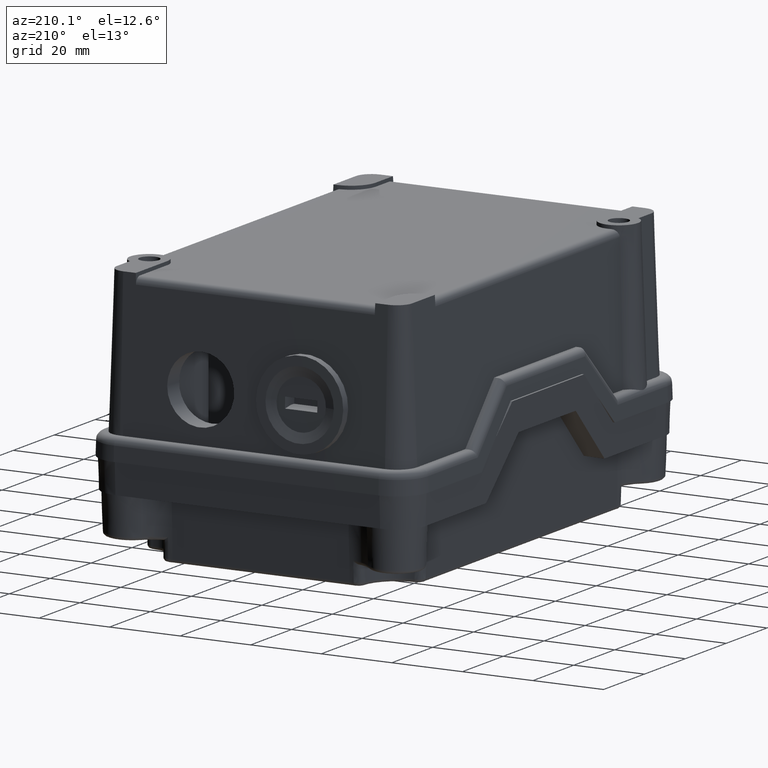
[diagram: clean part render]
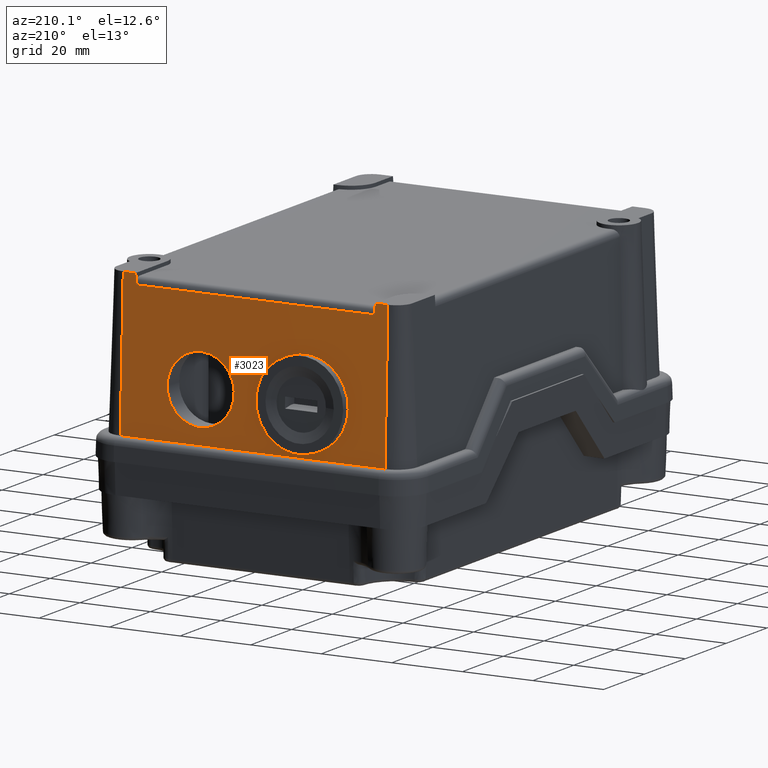
[diagram: same view with one face highlighted and labeled with its STEP entity id]
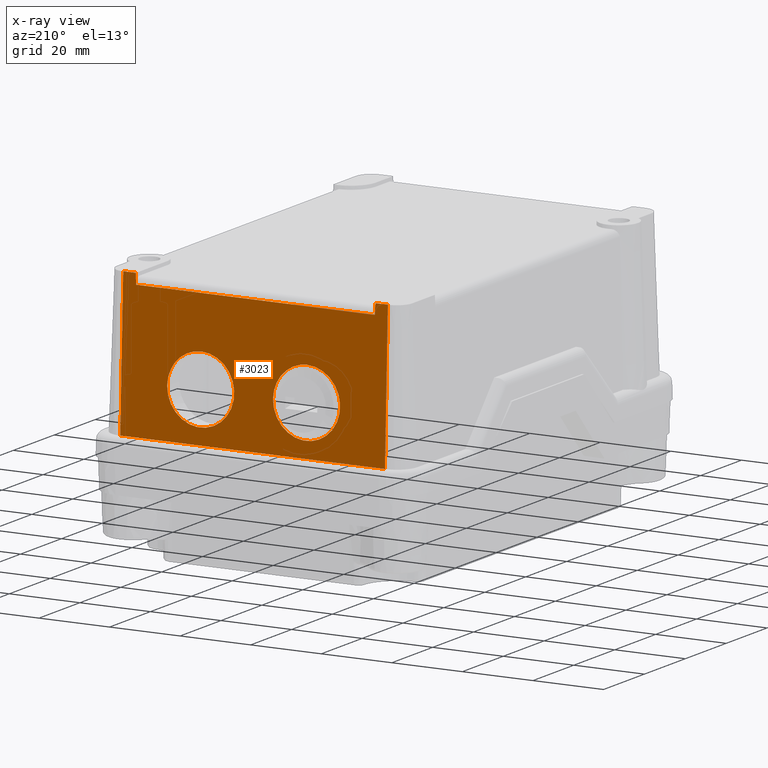
[diagram: x-ray of the same camera — body ghosted, the highlighted face saturated]
A machine part, auxiliary view. The second image highlights one B-rep face of the part: STEP entity #3023.
The next image is the same camera in x-ray: the body ghosted, the highlighted face saturated — about 0% of this face is hidden behind the body in this view.
In plain terms, the highlighted planar face has unit normal (0, 0.9994, 0.0349).
Its self-contained STEP definition (entity closure, byte-faithful):
#1225=CARTESIAN_POINT('',(25.885091562884362,104.401469438650990,19.991471578267351));
#1226=VERTEX_POINT('',#1225);
#1227=CARTESIAN_POINT('',(16.385091562884362,104.401469438650960,19.991471578267351));
#1228=DIRECTION('',(0.0,-0.999390827019096,-0.034899496702501));
#1229=DIRECTION('',(-1.0,0.0,0.0));
#1230=AXIS2_PLACEMENT_3D('',#1227,#1228,#1229);
#1231=CIRCLE('',#1230,9.500000000000000);
#1232=EDGE_CURVE('',#1226,#1226,#1231,.T.);
#1253=CARTESIAN_POINT('',(55.885091562884369,104.401469438650990,19.991471578267351));
#1254=VERTEX_POINT('',#1253);
#1255=CARTESIAN_POINT('',(46.385091562884362,104.401469438650960,19.991471578267355));
#1256=DIRECTION('',(0.0,-0.999390827019096,-0.034899496702501));
#1257=DIRECTION('',(-1.0,0.0,0.0));
#1258=AXIS2_PLACEMENT_3D('',#1255,#1256,#1257);
#1259=CIRCLE('',#1258,9.500000000000000);
#1260=EDGE_CURVE('',#1254,#1254,#1259,.T.);
#2920=CARTESIAN_POINT('',(65.211332061839954,103.560635717240100,44.069798993405001));
#2921=VERTEX_POINT('',#2920);
#2929=CARTESIAN_POINT('',(-2.441148936071214,103.560635717240100,44.069798993405001));
#2930=VERTEX_POINT('',#2929);
#2931=CARTESIAN_POINT('',(65.211332061839954,103.560635717240100,44.069798993405001));
#2932=DIRECTION('',(-1.0,0.0,0.0));
#2933=VECTOR('',#2932,67.652480997911169);
#2934=LINE('',#2931,#2933);
#2935=EDGE_CURVE('',#2921,#2930,#2934,.T.);
#2955=CARTESIAN_POINT('',(68.885091562884426,103.493231612816060,46.000000000000007));
#2956=DIRECTION('',(0.0,0.999390827019096,0.034899496702501));
#2957=DIRECTION('',(1.0,0.0,0.0));
#2958=AXIS2_PLACEMENT_3D('',#2955,#2956,#2957);
#2959=PLANE('',#2958);
#2960=CARTESIAN_POINT('',(-2.543473809986950,103.458310843324310,46.999999999999993));
#2961=VERTEX_POINT('',#2960);
#2962=CARTESIAN_POINT('',(-2.441148936071214,103.560635717240100,44.069798993405001));
#2963=DIRECTION('',(-0.034878262742356,-0.034878262742375,0.998782765958719));
#2964=VECTOR('',#2963,2.933772093856995);
#2965=LINE('',#2962,#2964);
#2966=EDGE_CURVE('',#2930,#2961,#2965,.T.);
#2967=ORIENTED_EDGE('',*,*,#2966,.F.);
#2968=ORIENTED_EDGE('',*,*,#2935,.F.);
#2969=CARTESIAN_POINT('',(65.313656935755745,103.458310843324310,46.999999999999993));
#2970=VERTEX_POINT('',#2969);
#2971=CARTESIAN_POINT('',(65.211332061839954,103.560635717240100,44.069798993405001));
#2972=DIRECTION('',(0.034878262742375,-0.034878262742375,0.998782765958718));
#2973=VECTOR('',#2972,2.933772093856997);
#2974=LINE('',#2971,#2973);
#2975=EDGE_CURVE('',#2921,#2970,#2974,.T.);
#2976=ORIENTED_EDGE('',*,*,#2975,.T.);
#2977=CARTESIAN_POINT('',(68.885091562884426,103.458310843324310,46.999999999999993));
#2978=VERTEX_POINT('',#2977);
#2979=CARTESIAN_POINT('',(65.313656935755745,103.458310843324310,46.999999999999993));
#2980=DIRECTION('',(1.0,0.0,0.0));
#2981=VECTOR('',#2980,3.571434627128681);
#2982=LINE('',#2979,#2981);
#2983=EDGE_CURVE('',#2970,#2978,#2982,.T.);
#2984=ORIENTED_EDGE('',*,*,#2983,.T.);
#2985=CARTESIAN_POINT('',(68.885091562884426,104.890062392485970,6.000000000000014));
#2986=VERTEX_POINT('',#2985);
#2987=CARTESIAN_POINT('',(68.885091562884426,104.890062392485970,6.000000000000014));
#2988=DIRECTION('',(0.0,-0.034899496702501,0.999390827019096));
#2989=VECTOR('',#2988,41.024991316251672);
#2990=LINE('',#2987,#2989);
#2991=EDGE_CURVE('',#2986,#2978,#2990,.T.);
#2992=ORIENTED_EDGE('',*,*,#2991,.F.);
#2993=CARTESIAN_POINT('',(-6.114908437115647,104.890062392485970,6.000000000000014));
#2994=VERTEX_POINT('',#2993);
#2995=CARTESIAN_POINT('',(68.885091562884426,104.890062392485970,6.000000000000014));
#2996=DIRECTION('',(-1.0,0.0,0.0));
#2997=VECTOR('',#2996,75.000000000000071);
#2998=LINE('',#2995,#2997);
#2999=EDGE_CURVE('',#2986,#2994,#2998,.T.);
#3000=ORIENTED_EDGE('',*,*,#2999,.T.);
#3001=CARTESIAN_POINT('',(-6.114908437115647,103.458310843324310,46.999999999999993));
#3002=VERTEX_POINT('',#3001);
#3003=CARTESIAN_POINT('',(-6.114908437115647,104.890062392485970,6.000000000000014));
#3004=DIRECTION('',(0.0,-0.034899496702501,0.999390827019096));
#3005=VECTOR('',#3004,41.024991316251672);
#3006=LINE('',#3003,#3005);
#3007=EDGE_CURVE('',#2994,#3002,#3006,.T.);
#3008=ORIENTED_EDGE('',*,*,#3007,.T.);
#3009=CARTESIAN_POINT('',(-6.114908437115647,103.458310843324310,46.999999999999993));
#3010=DIRECTION('',(1.0,0.0,0.0));
#3011=VECTOR('',#3010,3.571434627128697);
#3012=LINE('',#3009,#3011);
#3013=EDGE_CURVE('',#3002,#2961,#3012,.T.);
#3014=ORIENTED_EDGE('',*,*,#3013,.T.);
#3015=EDGE_LOOP('',(#2967,#2968,#2976,#2984,#2992,#3000,#3008,#3014));
#3016=FACE_OUTER_BOUND('',#3015,.T.);
#3017=ORIENTED_EDGE('',*,*,#1232,.T.);
#3018=EDGE_LOOP('',(#3017));
#3019=FACE_BOUND('',#3018,.T.);
#3020=ORIENTED_EDGE('',*,*,#1260,.T.);
#3021=EDGE_LOOP('',(#3020));
#3022=FACE_BOUND('',#3021,.T.);
#3023=ADVANCED_FACE('',(#3016,#3019,#3022),#2959,.T.);